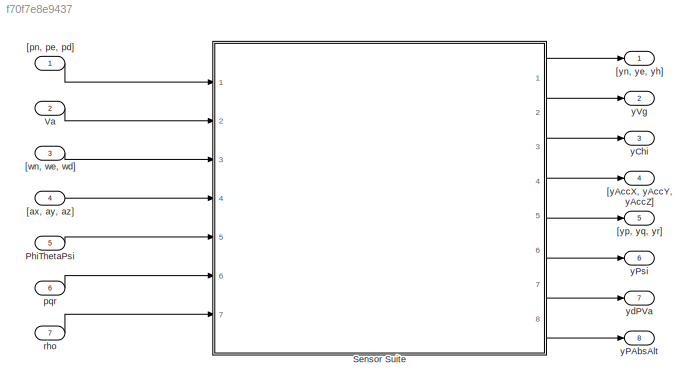
MODEL slx_f70f7e8e9437
KIND model
CONFIG AbsTol = auto
CONFIG EnableMultiTasking = off
CONFIG FixedStep = auto
CONFIG MaxStep = auto
CONFIG MinStep = auto
CONFIG RelTol = 1e-3
CONFIG SampleTimeConstraint = Unconstrained
CONFIG Solver = VariableStepAuto
CONFIG SolverName = VariableStepAuto
CONFIG StartTime = 0.0
CONFIG StopTime = 10.0
BLOCK [Inport] PhiThetaPsi
  IconDisplay = Port number
  Port = 5
  PortDimensions = 3
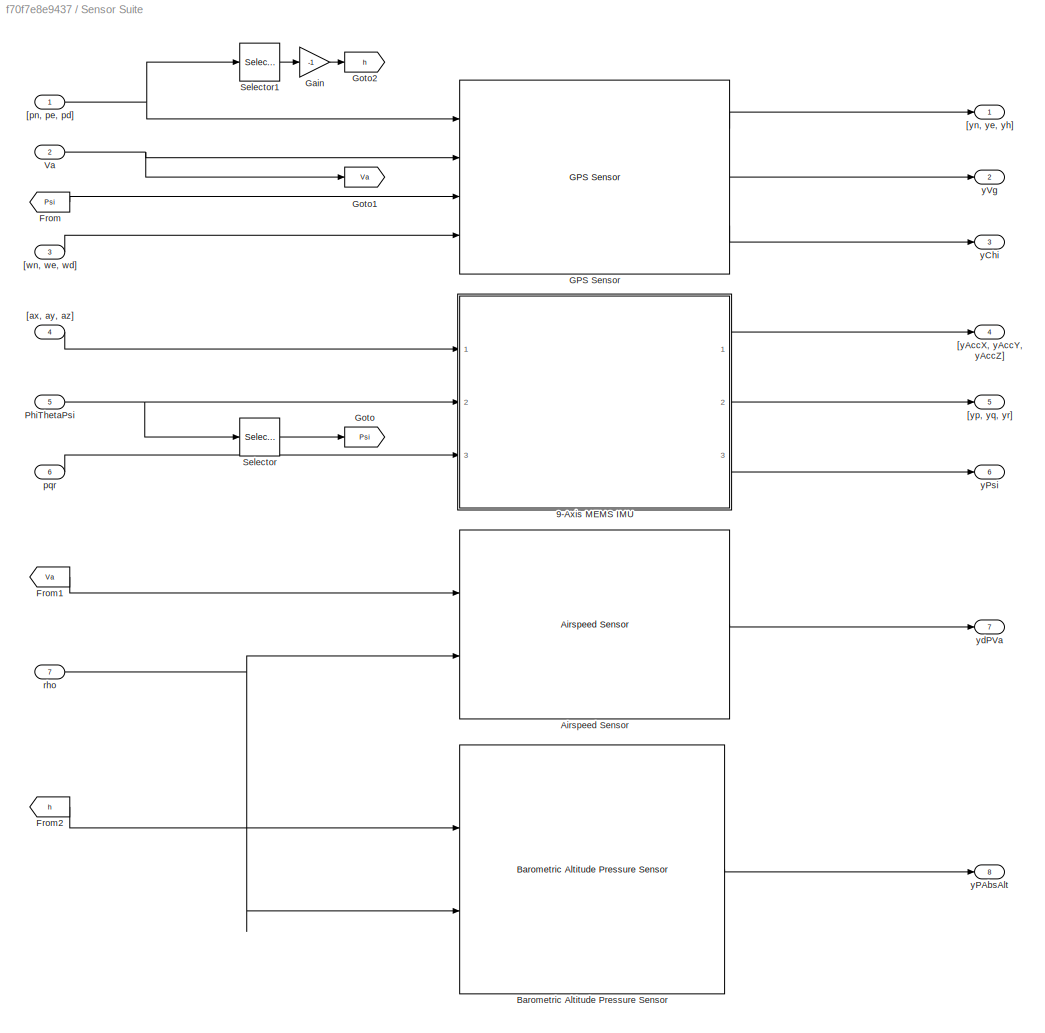
BLOCK [SubSystem] Sensor Suite
  Ports = [7, 8]
  RequestExecContextInheritance = off
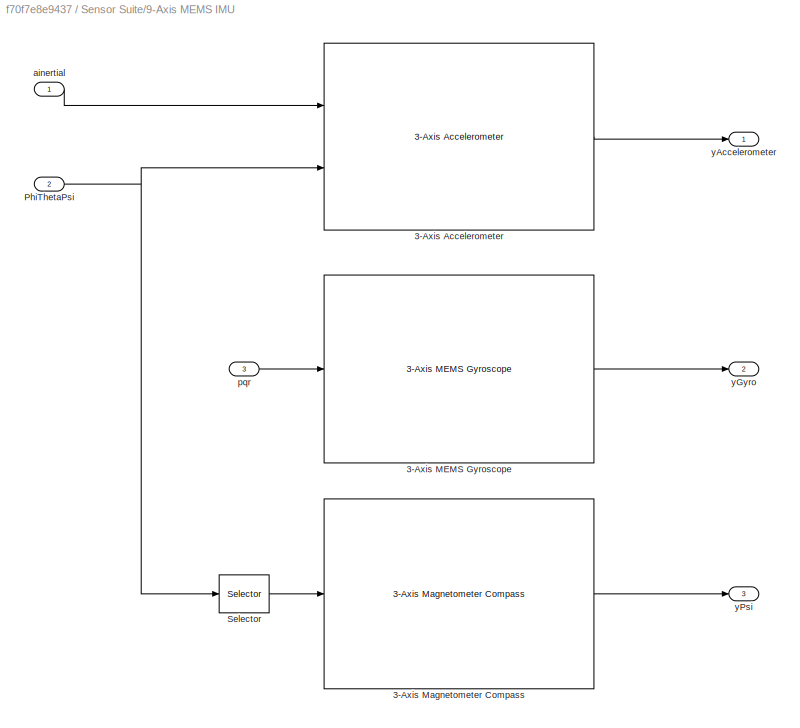
BLOCK [SubSystem] Sensor Suite/9-Axis MEMS IMU
  Ports = [3, 3]
  RequestExecContextInheritance = off
BLOCK [Reference] Sensor Suite/9-Axis MEMS IMU/3-Axis Accelerometer  REF=sensors/3-Axis Accelerometer  (lib defined in slx_03e243f1d19c, slx_0ec61ea8f7b5, +8 more)
  Ports = [2, 1]
  SourceBlock = sensors/3-Axis Accelerometer
BLOCK [Reference] Sensor Suite/9-Axis MEMS IMU/3-Axis MEMS Gyroscope  REF=sensors/3-Axis MEMS Gyroscope  (lib defined in slx_03e243f1d19c, slx_0ec61ea8f7b5, +8 more)
  Ports = [1, 1]
  SourceBlock = sensors/3-Axis MEMS Gyroscope
BLOCK [Reference] Sensor Suite/9-Axis MEMS IMU/3-Axis Magnetometer Compass  REF=sensors/3-Axis Magnetometer Compass  (lib defined in slx_03e243f1d19c, slx_0ec61ea8f7b5, +8 more)
  Ports = [1, 1]
  SourceBlock = sensors/3-Axis Magnetometer Compass
BLOCK [Inport] Sensor Suite/9-Axis MEMS IMU/PhiThetaPsi
  IconDisplay = Port number
  Port = 2
BLOCK [Selector] Sensor Suite/9-Axis MEMS IMU/Selector
  IndexOptions = Index vector (dialog)
  Indices = 3
  InputPortWidth = 3
  OutputSizes = 1
  Ports = [1, 1]
BLOCK [Inport] Sensor Suite/9-Axis MEMS IMU/ainertial
  IconDisplay = Port number
BLOCK [Inport] Sensor Suite/9-Axis MEMS IMU/pqr
  IconDisplay = Port number
  Port = 3
BLOCK [Outport] Sensor Suite/9-Axis MEMS IMU/yAccelerometer
  IconDisplay = Port number
BLOCK [Outport] Sensor Suite/9-Axis MEMS IMU/yGyro
  IconDisplay = Port number
  Port = 2
BLOCK [Outport] Sensor Suite/9-Axis MEMS IMU/yPsi
  IconDisplay = Port number
  Port = 3
BLOCK [Reference] Sensor Suite/Airspeed Sensor  REF=sensors/Airspeed Sensor  (lib defined in slx_03e243f1d19c, slx_0ec61ea8f7b5, +8 more)
  Ports = [2, 1]
  SourceBlock = sensors/Airspeed Sensor
BLOCK [Reference] Sensor Suite/Barometric Altitude Pressure Sensor  REF=sensors/Barometric Altitude Pressure Sensor  (lib defined in slx_03e243f1d19c, slx_0ec61ea8f7b5, +8 more)
  Ports = [2, 1]
  SourceBlock = sensors/Barometric Altitude Pressure Sensor
BLOCK [From] Sensor Suite/From
  GotoTag = Psi
BLOCK [From] Sensor Suite/From1
  GotoTag = Va
BLOCK [From] Sensor Suite/From2
  GotoTag = h
BLOCK [Reference] Sensor Suite/GPS Sensor  REF=sensors/GPS Sensor  (lib defined in slx_03e243f1d19c, slx_0ec61ea8f7b5, +8 more)
  Ports = [4, 3]
  SourceBlock = sensors/GPS Sensor
BLOCK [Gain] Sensor Suite/Gain
  Gain = -1
  OutDataTypeStr = Inherit: Inherit via internal rule
  ParamDataTypeStr = Inherit: Inherit via internal rule
  SaturateOnIntegerOverflow = off
BLOCK [Goto] Sensor Suite/Goto
  GotoTag = Psi
BLOCK [Goto] Sensor Suite/Goto1
  GotoTag = Va
BLOCK [Goto] Sensor Suite/Goto2
  GotoTag = h
BLOCK [Inport] Sensor Suite/PhiThetaPsi
  IconDisplay = Port number
  Port = 5
BLOCK [Selector] Sensor Suite/Selector
  IndexOptions = Index vector (dialog)
  Indices = 3
  InputPortWidth = 3
  OutputSizes = 1
  Ports = [1, 1]
BLOCK [Selector] Sensor Suite/Selector1
  IndexOptions = Index vector (dialog)
  Indices = 3
  InputPortWidth = 3
  OutputSizes = 1
  Ports = [1, 1]
BLOCK [Inport] Sensor Suite/Va
  IconDisplay = Port number
  Port = 2
BLOCK [Inport] Sensor Suite/[ax, ay, az]
  IconDisplay = Port number
  Port = 4
BLOCK [Inport] Sensor Suite/[pn, pe, pd]
  IconDisplay = Port number
BLOCK [Inport] Sensor Suite/[wn, we, wd]
  IconDisplay = Port number
  Port = 3
BLOCK [Outport] Sensor Suite/[yAccX, yAccY, yAccZ]
  IconDisplay = Port number
  Port = 4
BLOCK [Outport] Sensor Suite/[yn, ye, yh]
  IconDisplay = Port number
BLOCK [Outport] Sensor Suite/[yp, yq, yr]
  IconDisplay = Port number
  Port = 5
BLOCK [Inport] Sensor Suite/pqr
  IconDisplay = Port number
  Port = 6
BLOCK [Inport] Sensor Suite/rho
  IconDisplay = Port number
  Port = 7
BLOCK [Outport] Sensor Suite/yChi
  IconDisplay = Port number
  Port = 3
BLOCK [Outport] Sensor Suite/yPAbsAlt
  IconDisplay = Port number
  Port = 8
BLOCK [Outport] Sensor Suite/yPsi
  IconDisplay = Port number
  Port = 6
BLOCK [Outport] Sensor Suite/yVg
  IconDisplay = Port number
  Port = 2
BLOCK [Outport] Sensor Suite/ydPVa
  IconDisplay = Port number
  Port = 7
BLOCK [Inport] Va
  IconDisplay = Port number
  Port = 2
  PortDimensions = 1
BLOCK [Inport] [ax, ay, az]
  IconDisplay = Port number
  Port = 4
  PortDimensions = 3
BLOCK [Inport] [pn, pe, pd]
  IconDisplay = Port number
  PortDimensions = 3
BLOCK [Inport] [wn, we, wd]
  IconDisplay = Port number
  Port = 3
  PortDimensions = 3
BLOCK [Outport] [yAccX, yAccY, yAccZ]
  IconDisplay = Port number
  Port = 4
BLOCK [Outport] [yn, ye, yh]
  IconDisplay = Port number
BLOCK [Outport] [yp, yq, yr]
  IconDisplay = Port number
  Port = 5
BLOCK [Inport] pqr
  IconDisplay = Port number
  Port = 6
  PortDimensions = 3
BLOCK [Inport] rho
  IconDisplay = Port number
  Port = 7
  PortDimensions = 1
BLOCK [Outport] yChi
  IconDisplay = Port number
  Port = 3
BLOCK [Outport] yPAbsAlt
  IconDisplay = Port number
  Port = 8
BLOCK [Outport] yPsi
  IconDisplay = Port number
  Port = 6
BLOCK [Outport] yVg
  IconDisplay = Port number
  Port = 2
BLOCK [Outport] ydPVa
  IconDisplay = Port number
  Port = 7
LINE PhiThetaPsi:1 -> Sensor Suite:5
LINE Sensor Suite/9-Axis MEMS IMU/3-Axis Accelerometer:1 -> Sensor Suite/9-Axis MEMS IMU/yAccelerometer:1
LINE Sensor Suite/9-Axis MEMS IMU/3-Axis MEMS Gyroscope:1 -> Sensor Suite/9-Axis MEMS IMU/yGyro:1
LINE Sensor Suite/9-Axis MEMS IMU/3-Axis Magnetometer Compass:1 -> Sensor Suite/9-Axis MEMS IMU/yPsi:1
NET Sensor Suite/9-Axis MEMS IMU/PhiThetaPsi:1 -> Sensor Suite/9-Axis MEMS IMU/3-Axis Accelerometer:2, Sensor Suite/9-Axis MEMS IMU/Selector:1
LINE Sensor Suite/9-Axis MEMS IMU/Selector:1 -> Sensor Suite/9-Axis MEMS IMU/3-Axis Magnetometer Compass:1
LINE Sensor Suite/9-Axis MEMS IMU/ainertial:1 -> Sensor Suite/9-Axis MEMS IMU/3-Axis Accelerometer:1
LINE Sensor Suite/9-Axis MEMS IMU/pqr:1 -> Sensor Suite/9-Axis MEMS IMU/3-Axis MEMS Gyroscope:1
LINE Sensor Suite/9-Axis MEMS IMU:1 -> Sensor Suite/[yAccX, yAccY, yAccZ]:1
LINE Sensor Suite/9-Axis MEMS IMU:2 -> Sensor Suite/[yp, yq, yr]:1
LINE Sensor Suite/9-Axis MEMS IMU:3 -> Sensor Suite/yPsi:1
LINE Sensor Suite/Airspeed Sensor:1 -> Sensor Suite/ydPVa:1
LINE Sensor Suite/Barometric Altitude Pressure Sensor:1 -> Sensor Suite/yPAbsAlt:1
LINE Sensor Suite/From1:1 -> Sensor Suite/Airspeed Sensor:1
LINE Sensor Suite/From2:1 -> Sensor Suite/Barometric Altitude Pressure Sensor:1
LINE Sensor Suite/From:1 -> Sensor Suite/GPS Sensor:3
LINE Sensor Suite/GPS Sensor:1 -> Sensor Suite/[yn, ye, yh]:1
LINE Sensor Suite/GPS Sensor:2 -> Sensor Suite/yVg:1
LINE Sensor Suite/GPS Sensor:3 -> Sensor Suite/yChi:1
LINE Sensor Suite/Gain:1 -> Sensor Suite/Goto2:1
NET Sensor Suite/PhiThetaPsi:1 -> Sensor Suite/9-Axis MEMS IMU:2, Sensor Suite/Selector:1
LINE Sensor Suite/Selector1:1 -> Sensor Suite/Gain:1
LINE Sensor Suite/Selector:1 -> Sensor Suite/Goto:1
NET Sensor Suite/Va:1 -> Sensor Suite/GPS Sensor:2, Sensor Suite/Goto1:1
LINE Sensor Suite/[ax, ay, az]:1 -> Sensor Suite/9-Axis MEMS IMU:1
NET Sensor Suite/[pn, pe, pd]:1 -> Sensor Suite/GPS Sensor:1, Sensor Suite/Selector1:1
LINE Sensor Suite/[wn, we, wd]:1 -> Sensor Suite/GPS Sensor:4
LINE Sensor Suite/pqr:1 -> Sensor Suite/9-Axis MEMS IMU:3
NET Sensor Suite/rho:1 -> Sensor Suite/Airspeed Sensor:2, Sensor Suite/Barometric Altitude Pressure Sensor:2
LINE Sensor Suite:1 -> [yn, ye, yh]:1
LINE Sensor Suite:2 -> yVg:1
LINE Sensor Suite:3 -> yChi:1
LINE Sensor Suite:4 -> [yAccX, yAccY, yAccZ]:1
LINE Sensor Suite:5 -> [yp, yq, yr]:1
LINE Sensor Suite:6 -> yPsi:1
LINE Sensor Suite:7 -> ydPVa:1
LINE Sensor Suite:8 -> yPAbsAlt:1
LINE Va:1 -> Sensor Suite:2
LINE [ax, ay, az]:1 -> Sensor Suite:4
LINE [pn, pe, pd]:1 -> Sensor Suite:1
LINE [wn, we, wd]:1 -> Sensor Suite:3
LINE pqr:1 -> Sensor Suite:6
LINE rho:1 -> Sensor Suite:7
note: NET lines group one-source signal fan-out (src -> all destinations, sorted); 1:1 wires keep LINE
